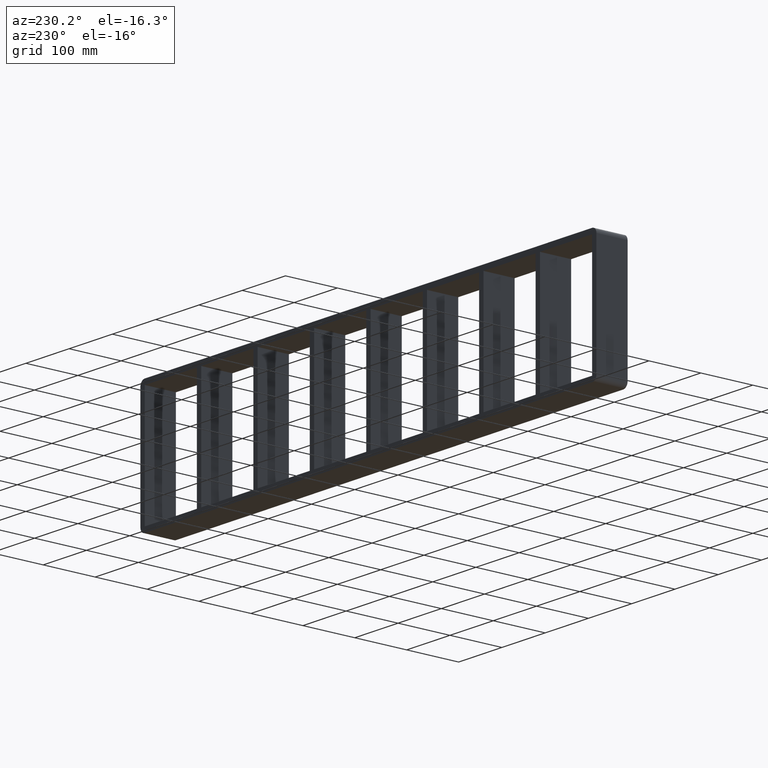
[diagram: clean part render]
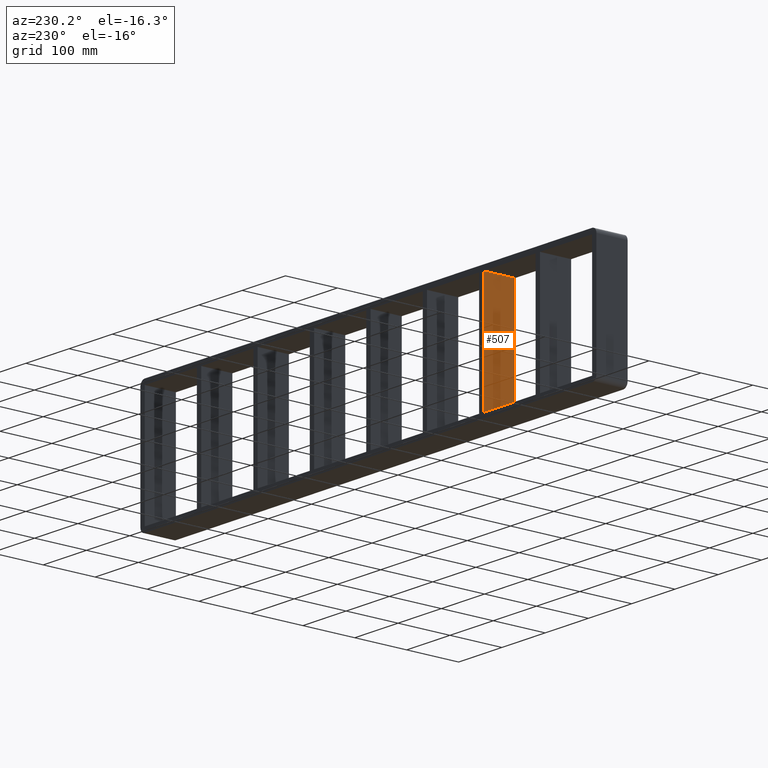
[diagram: same view with one face highlighted and labeled with its STEP entity id]
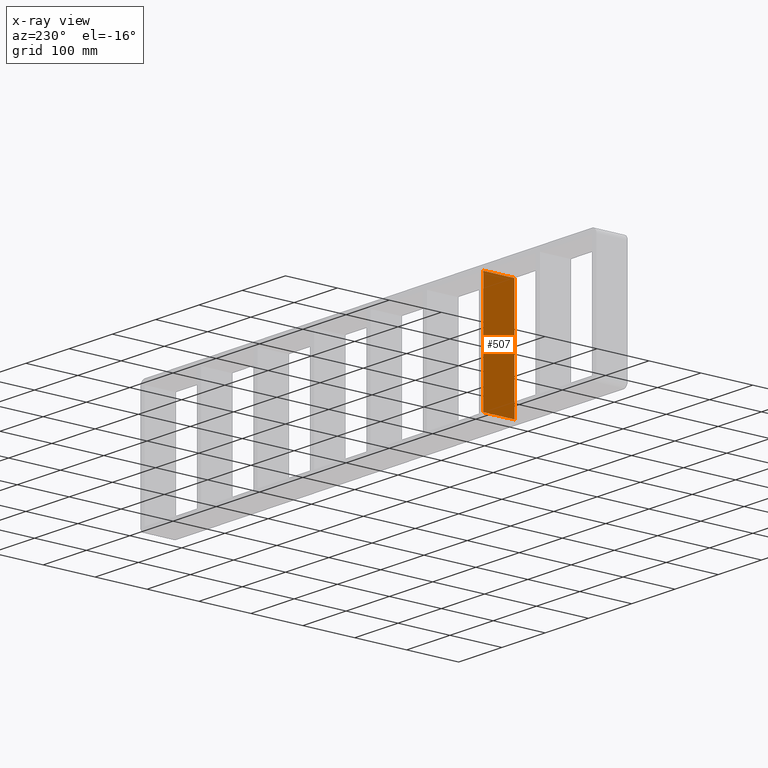
[diagram: x-ray of the same camera — body ghosted, the highlighted face saturated]
A machine part, auxiliary view. The second image highlights one B-rep face of the part: STEP entity #507.
The next image is the same camera in x-ray: the body ghosted, the highlighted face saturated — about 0% of this face is hidden behind the body in this view.
In plain terms, the highlighted planar face has unit normal (-1, 0, 0).
Its self-contained STEP definition (entity closure, byte-faithful):
#468=CARTESIAN_POINT('',(-266.00000000000125,-3.0,-109.0));
#469=DIRECTION('',(-1.0,0.0,0.0));
#470=DIRECTION('',(0.0,0.0,1.0));
#471=AXIS2_PLACEMENT_3D('',#468,#469,#470);
#472=PLANE('',#471);
#473=CARTESIAN_POINT('',(-266.00000000000125,-3.0,-109.0));
#474=VERTEX_POINT('',#473);
#475=CARTESIAN_POINT('',(-266.00000000000125,-3.0,108.99999999999997));
#476=VERTEX_POINT('',#475);
#477=CARTESIAN_POINT('',(-266.00000000000125,-3.0,-109.0));
#478=DIRECTION('',(0.0,0.0,1.0));
#479=VECTOR('',#478,217.99999999999997);
#480=LINE('',#477,#479);
#481=EDGE_CURVE('',#474,#476,#480,.T.);
#482=ORIENTED_EDGE('',*,*,#481,.T.);
#483=CARTESIAN_POINT('',(-266.00000000000125,57.0,108.99999999999997));
#484=VERTEX_POINT('',#483);
#485=CARTESIAN_POINT('',(-266.00000000000131,57.000000000000007,108.99999999999999));
#486=DIRECTION('',(0.0,-1.0,0.0));
#487=VECTOR('',#486,60.000000000000007);
#488=LINE('',#485,#487);
#489=EDGE_CURVE('',#484,#476,#488,.T.);
#490=ORIENTED_EDGE('',*,*,#489,.F.);
#491=CARTESIAN_POINT('',(-266.00000000000125,57.0,-109.0));
#492=VERTEX_POINT('',#491);
#493=CARTESIAN_POINT('',(-266.00000000000125,57.0,-109.0));
#494=DIRECTION('',(0.0,0.0,1.0));
#495=VECTOR('',#494,217.99999999999997);
#496=LINE('',#493,#495);
#497=EDGE_CURVE('',#492,#484,#496,.T.);
#498=ORIENTED_EDGE('',*,*,#497,.F.);
#499=CARTESIAN_POINT('',(-266.00000000000131,-3.0,-109.0));
#500=DIRECTION('',(0.0,1.0,0.0));
#501=VECTOR('',#500,60.000000000000007);
#502=LINE('',#499,#501);
#503=EDGE_CURVE('',#474,#492,#502,.T.);
#504=ORIENTED_EDGE('',*,*,#503,.F.);
#505=EDGE_LOOP('',(#482,#490,#498,#504));
#506=FACE_OUTER_BOUND('',#505,.T.);
#507=ADVANCED_FACE('',(#506),#472,.T.);